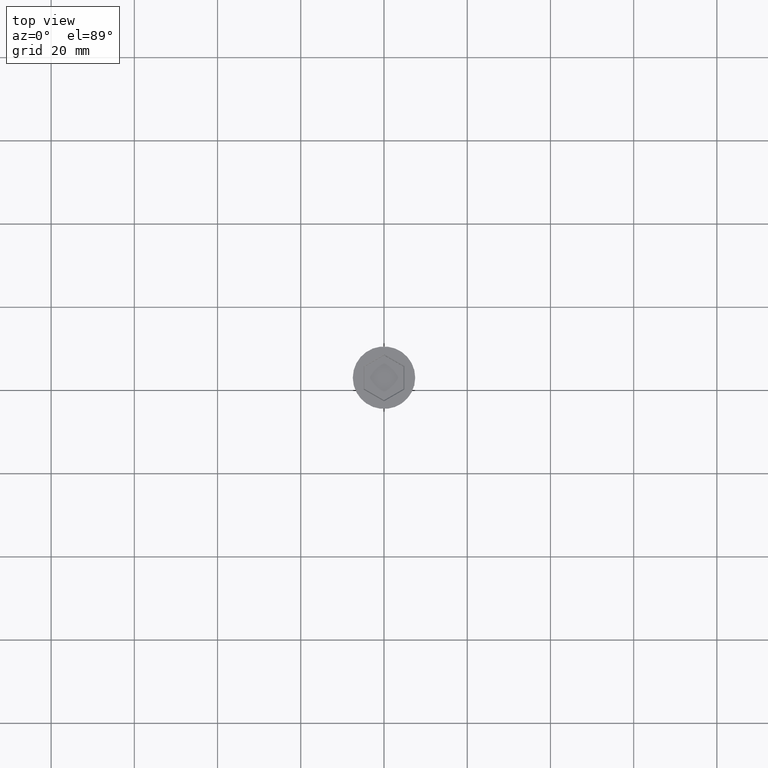
[diagram: clean part render]
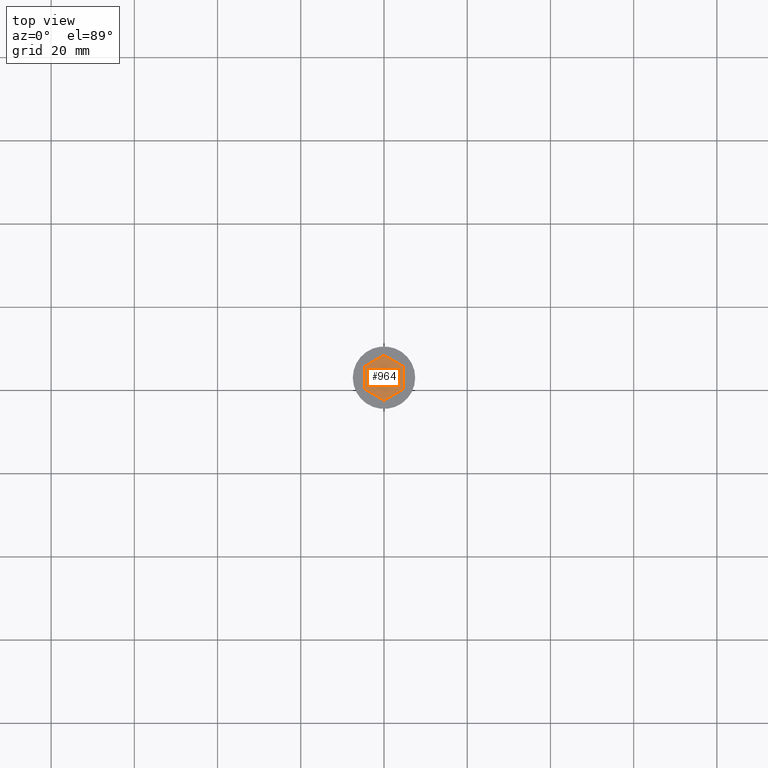
[diagram: same view with one face highlighted and labeled with its STEP entity id]
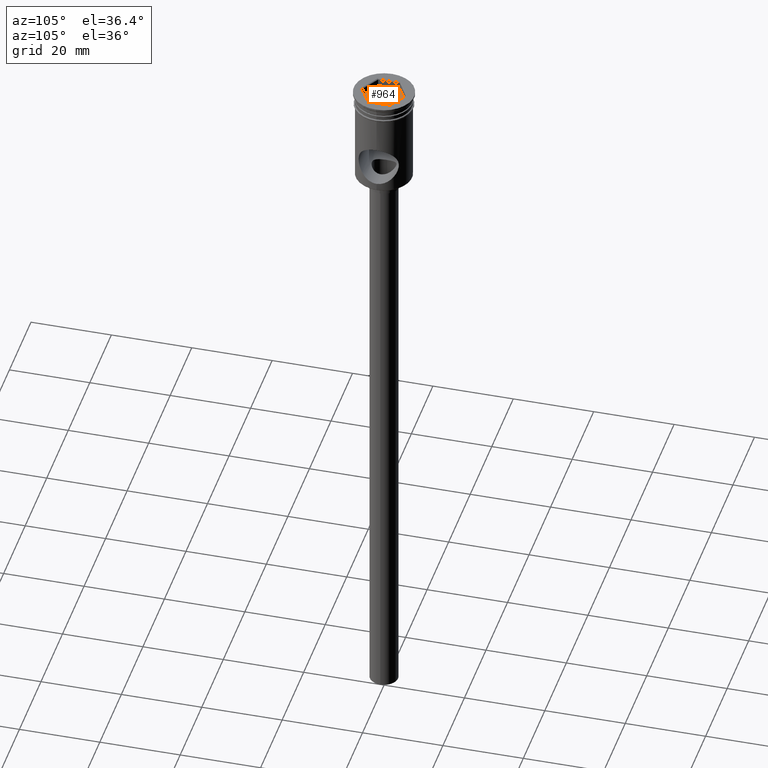
[diagram: same view with one face highlighted and labeled with its STEP entity id]
A machine part, top view. The second image highlights one B-rep face of the part: STEP entity #964.
A second angle (auxiliary view) of the same face is appended — the face is thin or edge-on in the first view.
In plain terms, the highlighted planar face has unit normal (-0, 0, 1).
Its self-contained STEP definition (entity closure, byte-faithful):
#13 = CARTESIAN_POINT ( 'NONE',  ( -4.699999999999999289, 2.713546265191240536, -2.000000000000000000 ) ) ;
#82 = VERTEX_POINT ( 'NONE', #878 ) ;
#121 = LINE ( 'NONE', #532, #470 ) ;
#124 = ORIENTED_EDGE ( 'NONE', *, *, #906, .T. ) ;
#138 = CARTESIAN_POINT ( 'NONE',  ( 4.699999999999998401, -2.713546265191241869, -2.000000000000000000 ) ) ;
#145 = VERTEX_POINT ( 'NONE', #463 ) ;
#147 = DIRECTION ( 'NONE',  ( -0.8660254037844385966, -0.4999999999999998890, 0.000000000000000000 ) ) ;
#161 = VECTOR ( 'NONE', #1286, 1000.000000000000227 ) ;
#171 = EDGE_CURVE ( 'NONE', #999, #82, #121, .T. ) ;
#175 = ORIENTED_EDGE ( 'NONE', *, *, #1340, .T. ) ;
#236 = CARTESIAN_POINT ( 'NONE',  ( 4.699999999999998401, -2.713546265191241869, -2.000000000000000000 ) ) ;
#247 = LINE ( 'NONE', #1400, #1209 ) ;
#270 = FACE_OUTER_BOUND ( 'NONE', #1323, .T. ) ;
#389 = LINE ( 'NONE', #893, #1493 ) ;
#463 = CARTESIAN_POINT ( 'NONE',  ( -8.673617379884035472E-16, -5.427092530382482849, -2.000000000000000000 ) ) ;
#470 = VECTOR ( 'NONE', #570, 1000.000000000000227 ) ;
#487 = LINE ( 'NONE', #138, #1151 ) ;
#501 = DIRECTION ( 'NONE',  ( -0.000000000000000000, 0.000000000000000000, 1.000000000000000000 ) ) ;
#532 = CARTESIAN_POINT ( 'NONE',  ( 4.699999999999999289, 2.713546265191240092, -2.000000000000000000 ) ) ;
#570 = DIRECTION ( 'NONE',  ( -0.8660254037844385966, 0.5000000000000000000, 0.000000000000000000 ) ) ;
#603 = DIRECTION ( 'NONE',  ( 1.598207019933148115E-16, 1.000000000000000000, 0.000000000000000000 ) ) ;
#632 = PLANE ( 'NONE',  #1446 ) ;
#704 = VECTOR ( 'NONE', #147, 1000.000000000000227 ) ;
#835 = ORIENTED_EDGE ( 'NONE', *, *, #1363, .T. ) ;
#871 = DIRECTION ( 'NONE',  ( 1.000000000000000000, 0.000000000000000000, 0.000000000000000000 ) ) ;
#878 = CARTESIAN_POINT ( 'NONE',  ( 0.000000000000000000, 5.427092530382481073, -2.000000000000000000 ) ) ;
#893 = CARTESIAN_POINT ( 'NONE',  ( -4.699999999999999289, -2.713546265191241424, -2.000000000000000000 ) ) ;
#899 = DIRECTION ( 'NONE',  ( 0.8660254037844385966, -0.5000000000000001110, 0.000000000000000000 ) ) ;
#901 = VERTEX_POINT ( 'NONE', #932 ) ;
#906 = EDGE_CURVE ( 'NONE', #145, #1278, #950, .T. ) ;
#918 = EDGE_CURVE ( 'NONE', #1230, #901, #247, .T. ) ;
#932 = CARTESIAN_POINT ( 'NONE',  ( -4.699999999999999289, -2.713546265191241424, -2.000000000000000000 ) ) ;
#950 = LINE ( 'NONE', #1298, #161 ) ;
#964 = ADVANCED_FACE ( 'NONE', ( #270 ), #632, .T. ) ;
#973 = LINE ( 'NONE', #1189, #704 ) ;
#999 = VERTEX_POINT ( 'NONE', #1337 ) ;
#1151 = VECTOR ( 'NONE', #603, 1000.000000000000000 ) ;
#1165 = ORIENTED_EDGE ( 'NONE', *, *, #918, .T. ) ;
#1181 = DIRECTION ( 'NONE',  ( 0.000000000000000000, -1.000000000000000000, 0.000000000000000000 ) ) ;
#1189 = CARTESIAN_POINT ( 'NONE',  ( 0.000000000000000000, 5.427092530382481073, -2.000000000000000000 ) ) ;
#1209 = VECTOR ( 'NONE', #1181, 1000.000000000000000 ) ;
#1230 = VERTEX_POINT ( 'NONE', #13 ) ;
#1278 = VERTEX_POINT ( 'NONE', #236 ) ;
#1286 = DIRECTION ( 'NONE',  ( 0.8660254037844385966, 0.4999999999999998890, 0.000000000000000000 ) ) ;
#1290 = ORIENTED_EDGE ( 'NONE', *, *, #171, .T. ) ;
#1298 = CARTESIAN_POINT ( 'NONE',  ( -8.673617379884035472E-16, -5.427092530382482849, -2.000000000000000000 ) ) ;
#1322 = CARTESIAN_POINT ( 'NONE',  ( 0.000000000000000000, 0.000000000000000000, -2.000000000000000000 ) ) ;
#1323 = EDGE_LOOP ( 'NONE', ( #1290, #1387, #1165, #835, #124, #175 ) ) ;
#1337 = CARTESIAN_POINT ( 'NONE',  ( 4.699999999999999289, 2.713546265191240092, -2.000000000000000000 ) ) ;
#1340 = EDGE_CURVE ( 'NONE', #1278, #999, #487, .T. ) ;
#1363 = EDGE_CURVE ( 'NONE', #901, #145, #389, .T. ) ;
#1387 = ORIENTED_EDGE ( 'NONE', *, *, #1397, .T. ) ;
#1397 = EDGE_CURVE ( 'NONE', #82, #1230, #973, .T. ) ;
#1400 = CARTESIAN_POINT ( 'NONE',  ( -4.699999999999999289, 2.713546265191240536, -2.000000000000000000 ) ) ;
#1446 = AXIS2_PLACEMENT_3D ( 'NONE', #1322, #501, #871 ) ;
#1493 = VECTOR ( 'NONE', #899, 1000.000000000000000 ) ;